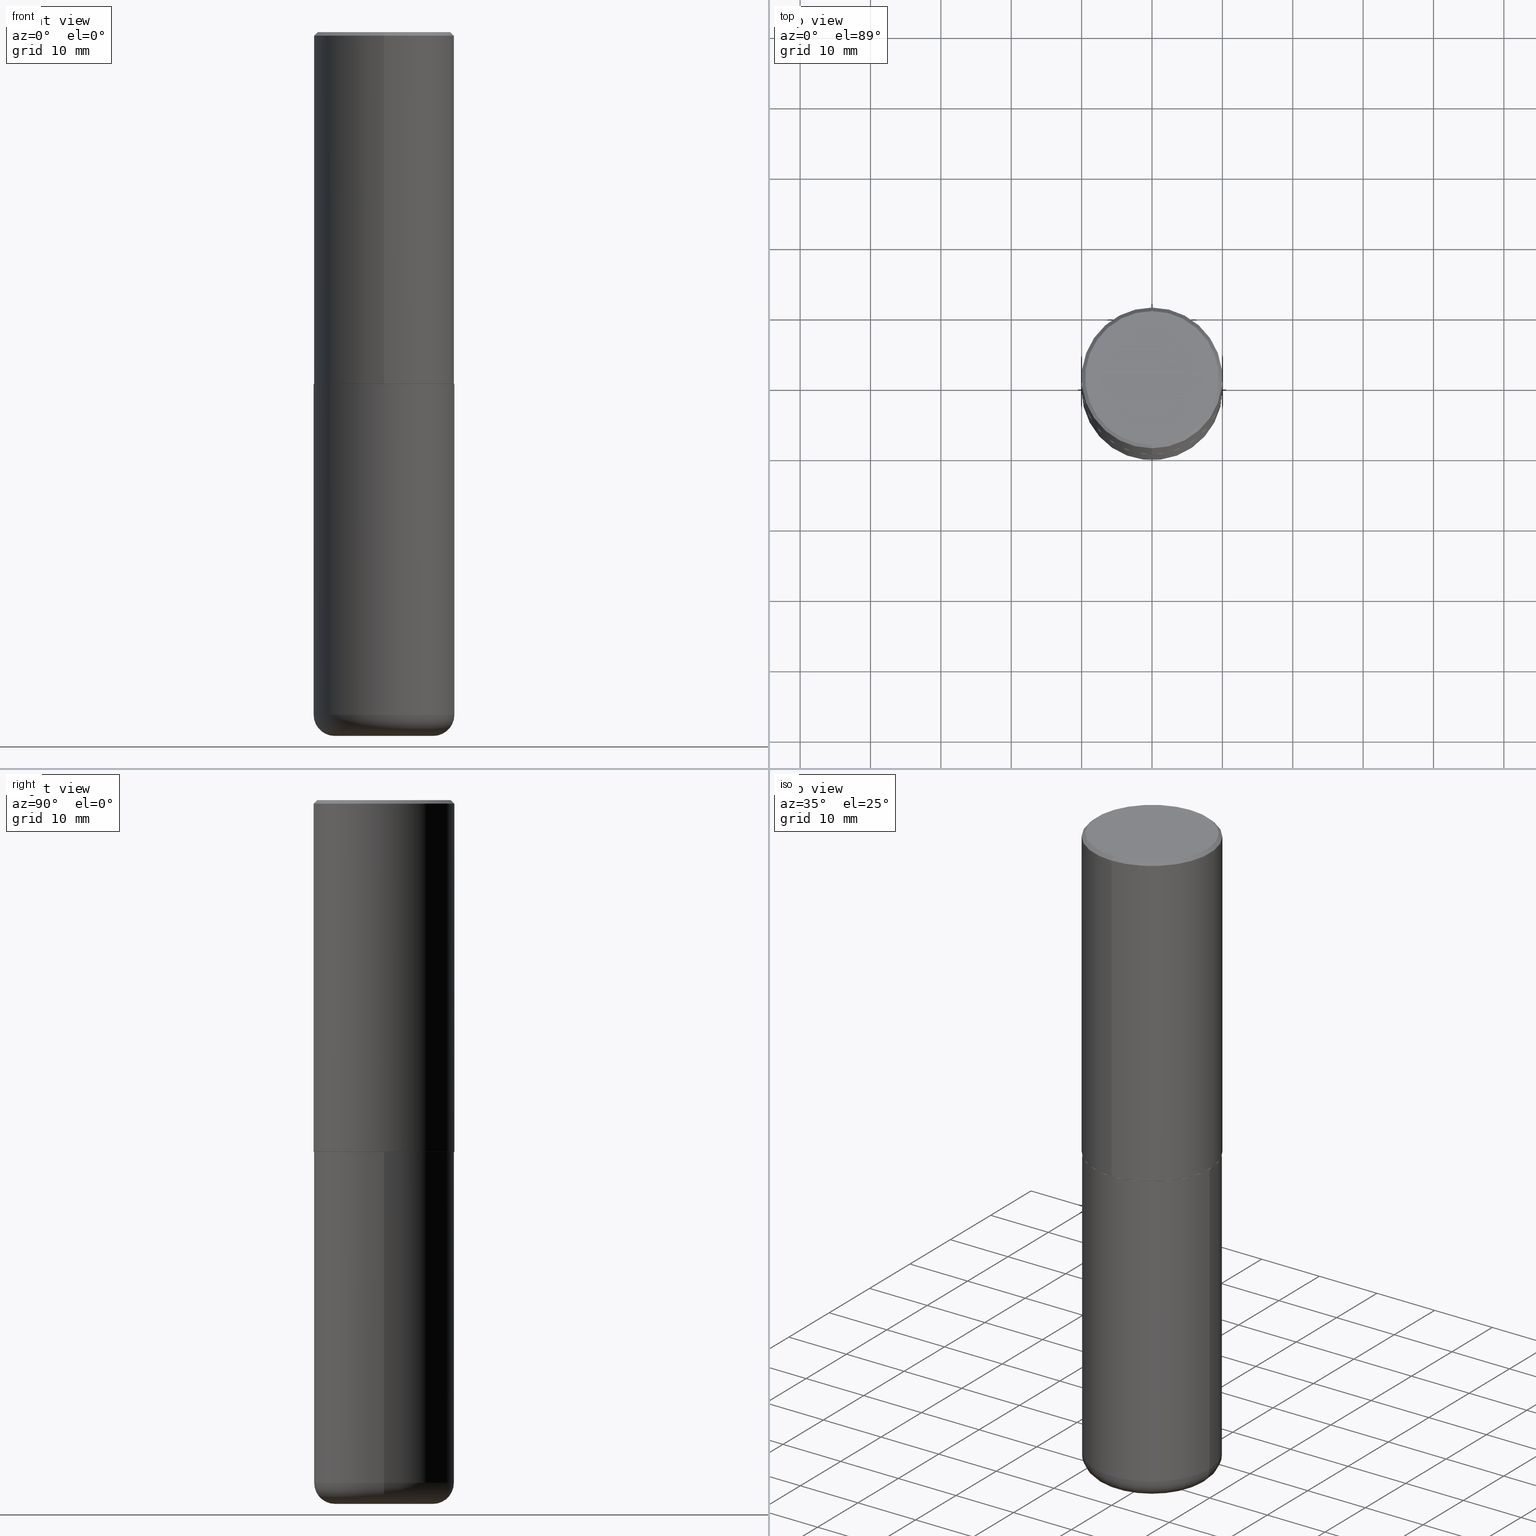
[diagram: canonical four-view strip — front | top / right | iso, engineering-drawing reading convention]
A machine part, canonical four-view strip (front | top / right | iso — engineering-drawing reading convention). The complete STEP part file that produces these views, byte-faithful:
ISO-10303-21;
HEADER;
FILE_DESCRIPTION (( 'STEP AP203' ),
    '1' );
FILE_NAME ('74809.STEP',
    '2024-05-02T19:20:12',
    ( '' ),
    ( '' ),
    'SwSTEP 2.0',
    'SolidWorks 2023',
    '' );
FILE_SCHEMA (( 'CONFIG_CONTROL_DESIGN' ));
ENDSEC;

DATA;
#1 = CARTESIAN_POINT ( 'NONE',  ( 4.816247846760815671E-29, -6.862632887772413316E-15, -1.967500000000000027 ) ) ;
#2 = FACE_OUTER_BOUND ( 'NONE', #405, .T. ) ;
#3 = CLOSED_SHELL ( 'NONE', ( #114, #81, #237, #254, #105, #359, #221, #224 ) ) ;
#4 = CC_DESIGN_DATE_AND_TIME_ASSIGNMENT ( #188, #25, ( #136 ) ) ;
#5 = CIRCLE ( 'NONE', #283, 0.3937000000000002720 ) ;
#6 = CARTESIAN_POINT ( 'NONE',  ( 4.813905344975441835E-29, -6.872981015512731707E-15, -1.968500000000000139 ) ) ;
#7 = EDGE_CURVE ( 'NONE', #51, #268, #10, .T. ) ;
#8 = FACE_OUTER_BOUND ( 'NONE', #14, .T. ) ;
#9 = ORIENTED_EDGE ( 'NONE', *, *, #296, .F. ) ;
#10 = CIRCLE ( 'NONE', #386, 0.1181000000000000660 ) ;
#11 = ADVANCED_FACE ( 'NONE', ( #387 ), #257, .T. ) ;
#12 = AXIS2_PLACEMENT_3D ( 'NONE', #354, #64, #161 ) ;
#13 = EDGE_CURVE ( 'NONE', #392, #106, #385, .T. ) ;
#14 = EDGE_LOOP ( 'NONE', ( #149, #176 ) ) ;
#15 = CALENDAR_DATE ( 2024, 2, 5 ) ;
#16 = ORIENTED_EDGE ( 'NONE', *, *, #92, .T. ) ;
#17 = PERSON_AND_ORGANIZATION ( #348, #409 ) ;
#18 = ORIENTED_EDGE ( 'NONE', *, *, #91, .F. ) ;
#19 = AXIS2_PLACEMENT_3D ( 'NONE', #28, #355, #98 ) ;
#20 = DIRECTION ( 'NONE',  ( 4.937700262164533054E-15, 0.7071067811865430208, -0.7071067811865520136 ) ) ;
#21 = APPROVAL_STATUS ( 'not_yet_approved' ) ;
#22 = EDGE_CURVE ( 'NONE', #268, #73, #163, .T. ) ;
#23 = MANIFOLD_SOLID_BREP ( 'Body-Move/Copy2[2]', #3 ) ;
#24 = DIRECTION ( 'NONE',  ( -2.445468806185136597E-29, 3.491481338843145583E-15, 1.000000000000000000 ) ) ;
#25 = DATE_TIME_ROLE ( 'classification_date' ) ;
#26 = ORIENTED_EDGE ( 'NONE', *, *, #357, .F. ) ;
#27 = PLANE ( 'NONE',  #319 ) ;
#28 = CARTESIAN_POINT ( 'NONE',  ( 4.895804672692082949E-31, -6.975992770289649092E-17, -0.02000000000000008715 ) ) ;
#29 = DIRECTION ( 'NONE',  ( -2.447902336346030930E-29, 3.487996385144809755E-15, 1.000000000000000000 ) ) ;
#30 = ORIENTED_EDGE ( 'NONE', *, *, #13, .F. ) ;
#31 = PRODUCT_DEFINITION_SHAPE ( 'NONE', 'NONE',  #417 ) ;
#32 = CARTESIAN_POINT ( 'NONE',  ( -5.506038201652776757E-45, 7.845509626213831500E-31, 2.249288347782537153E-16 ) ) ;
#33 = CARTESIAN_POINT ( 'NONE',  ( 0.000000000000000000, 0.000000000000000000, 0.000000000000000000 ) ) ;
#34 = ORIENTED_EDGE ( 'NONE', *, *, #231, .F. ) ;
#35 = DATE_AND_TIME ( #324, #252 ) ;
#36 = DIRECTION ( 'NONE',  ( -2.447902336346030930E-29, 3.487996385144809755E-15, 1.000000000000000000 ) ) ;
#37 = APPROVAL ( #334, 'UNSPECIFIED' ) ;
#38 = DIRECTION ( 'NONE',  ( -2.447902336346030930E-29, 3.487996385144809755E-15, 1.000000000000000000 ) ) ;
#39 = AXIS2_PLACEMENT_3D ( 'NONE', #314, #97, #360 ) ;
#40 = AXIS2_PLACEMENT_3D ( 'NONE', #210, #315, #229 ) ;
#41 = ORIENTED_EDGE ( 'NONE', *, *, #92, .F. ) ;
#42 = EDGE_CURVE ( 'NONE', #239, #243, #414, .T. ) ;
#43 = CC_DESIGN_SECURITY_CLASSIFICATION ( #136, ( #142 ) ) ;
#44 = CARTESIAN_POINT ( 'NONE',  ( 0.3937000000000001054, -1.608281049111317408E-14, -3.818900000000000183 ) ) ;
#45 = PERSON_AND_ORGANIZATION ( #348, #409 ) ;
#46 = ORIENTED_EDGE ( 'NONE', *, *, #202, .T. ) ;
#47 = CC_DESIGN_PERSON_AND_ORGANIZATION_ASSIGNMENT ( #345, #399, ( #142 ) ) ;
#48 = APPLICATION_PROTOCOL_DEFINITION ( 'international standard', 'config_control_design', 1994, #233 ) ;
#49 = CIRCLE ( 'NONE', #181, 0.2756000000000000116 ) ;
#50 = LOCAL_TIME ( 15, 20, 12.00000000000000000, #402 ) ;
#51 = VERTEX_POINT ( 'NONE', #375 ) ;
#52 = CARTESIAN_POINT ( 'NONE',  ( 9.339000823940418668E-29, -1.333361808490808928E-14, -3.818900000000000183 ) ) ;
#53 = CIRCLE ( 'NONE', #366, 0.3736999999999999211 ) ;
#54 = DIRECTION ( 'NONE',  ( -4.937700262165053702E-15, -0.7071067811866175168, 0.7071067811864775177 ) ) ;
#55 = ORIENTED_EDGE ( 'NONE', *, *, #72, .T. ) ;
#56 = EDGE_CURVE ( 'NONE', #106, #243, #217, .T. ) ;
#57 = CARTESIAN_POINT ( 'NONE',  ( 9.627810689950883669E-29, -1.374596203102546341E-14, -3.937000000000000277 ) ) ;
#58 = CARTESIAN_POINT ( 'NONE',  ( -2.749192406205084400E-15, -0.3937000000000002164, 1.373224176831512262E-15 ) ) ;
#59 = EDGE_CURVE ( 'NONE', #273, #83, #240, .T. ) ;
#60 = CARTESIAN_POINT ( 'NONE',  ( 4.895804672692082949E-31, -6.975992770289649092E-17, -0.02000000000000008715 ) ) ;
#61 = CALENDAR_DATE ( 2024, 2, 5 ) ;
#62 = CYLINDRICAL_SURFACE ( 'NONE', #102, 0.3937000000000002164 ) ;
#63 = AXIS2_PLACEMENT_3D ( 'NONE', #192, #353, #410 ) ;
#64 = DIRECTION ( 'NONE',  ( -2.445468806185136597E-29, 3.491481338843145583E-15, 1.000000000000000000 ) ) ;
#65 = DIRECTION ( 'NONE',  ( -2.447902336346030930E-29, 3.487996385144809755E-15, 1.000000000000000000 ) ) ;
#66 = ORIENTED_EDGE ( 'NONE', *, *, #384, .F. ) ;
#67 = CARTESIAN_POINT ( 'NONE',  ( 9.339000823940418668E-29, -1.333361808490808928E-14, -3.818900000000000183 ) ) ;
#68 = DIRECTION ( 'NONE',  ( 2.438088387897960049E-29, -3.491481338843145188E-15, -1.000000000000000000 ) ) ;
#69 = CC_DESIGN_APPROVAL ( #196, ( #136 ) ) ;
#70 = LENGTH_MEASURE_WITH_UNIT ( LENGTH_MEASURE( 0.02539999999999999897 ), #197 );
#71 = DIRECTION ( 'NONE',  ( 1.000000000000000000, -6.982962677686266711E-15, 0.000000000000000000 ) ) ;
#72 = EDGE_CURVE ( 'NONE', #83, #273, #140, .T. ) ;
#73 = VERTEX_POINT ( 'NONE', #290 ) ;
#74 = DIMENSIONAL_EXPONENTS ( 1.000000000000000000, 0.000000000000000000, 0.000000000000000000, 0.000000000000000000, 0.000000000000000000, 0.000000000000000000, 0.000000000000000000 ) ;
#75 = PERSON_AND_ORGANIZATION ( #348, #409 ) ;
#76 = AXIS2_PLACEMENT_3D ( 'NONE', #116, #352, #123 ) ;
#77 = VECTOR ( 'NONE', #184, 39.37007874015748143 ) ;
#78 = CC_DESIGN_APPROVAL ( #300, ( #417 ) ) ;
#79 = EDGE_CURVE ( 'NONE', #243, #106, #156, .T. ) ;
#80 = ORIENTED_EDGE ( 'NONE', *, *, #202, .F. ) ;
#81 = ADVANCED_FACE ( 'NONE', ( #323 ), #62, .T. ) ;
#82 = ORIENTED_EDGE ( 'NONE', *, *, #133, .T. ) ;
#83 = VERTEX_POINT ( 'NONE', #412 ) ;
#84 = DIRECTION ( 'NONE',  ( 6.982962677686265133E-15, 1.000000000000000000, -3.491137977679279029E-15 ) ) ;
#85 = DIRECTION ( 'NONE',  ( 6.982962677686265133E-15, 1.000000000000000000, -3.491137977679279029E-15 ) ) ;
#86 = PERSON_AND_ORGANIZATION_ROLE ( 'creator' ) ;
#87 = DIRECTION ( 'NONE',  ( -6.982962677686265133E-15, -1.000000000000000000, 3.478288761986584267E-15 ) ) ;
#88 = AXIS2_PLACEMENT_3D ( 'NONE', #127, #65, #129 ) ;
#89 = AXIS2_PLACEMENT_3D ( 'NONE', #173, #238, #205 ) ;
#90 = DIRECTION ( 'NONE',  ( -2.445468806185136597E-29, 3.491481338843145583E-15, 1.000000000000000000 ) ) ;
#91 = EDGE_CURVE ( 'NONE', #258, #106, #194, .T. ) ;
#92 = EDGE_CURVE ( 'NONE', #73, #134, #391, .T. ) ;
#93 = DIRECTION ( 'NONE',  ( -1.000000000000000000, 7.105427357601000281E-15, 0.000000000000000000 ) ) ;
#94 = FACE_OUTER_BOUND ( 'NONE', #177, .T. ) ;
#95 = DIRECTION ( 'NONE',  ( -4.851104656540950075E-15, -0.7071067811865479058, -0.7071067811865471286 ) ) ;
#96 = PRODUCT ( '74809', '74809', '', ( #174 ) ) ;
#97 = DIRECTION ( 'NONE',  ( -2.447902336346030930E-29, 3.487996385144809755E-15, 1.000000000000000000 ) ) ;
#98 = DIRECTION ( 'NONE',  ( -6.982962677686265133E-15, -1.000000000000000000, 3.491137977679279029E-15 ) ) ;
#99 = FACE_OUTER_BOUND ( 'NONE', #206, .T. ) ;
#100 = DIRECTION ( 'NONE',  ( -2.445468806185136877E-29, 3.491481338843145188E-15, 1.000000000000000000 ) ) ;
#101 = CARTESIAN_POINT ( 'NONE',  ( 4.818695749097161561E-29, -6.866120884157558352E-15, -1.968500000000000139 ) ) ;
#102 = AXIS2_PLACEMENT_3D ( 'NONE', #33, #223, #255 ) ;
#103 = CC_DESIGN_APPROVAL ( #37, ( #142 ) ) ;
#104 = DIRECTION ( 'NONE',  ( -6.982962677686265922E-15, -1.000000000000000000, 3.469453890861393601E-15 ) ) ;
#105 = ADVANCED_FACE ( 'NONE', ( #183 ), #159, .T. ) ;
#106 = VERTEX_POINT ( 'NONE', #132 ) ;
#107 = DIRECTION ( 'NONE',  ( -1.000000000000000000, 6.982962677686265922E-15, -4.876176775795935793E-29 ) ) ;
#108 = AXIS2_PLACEMENT_3D ( 'NONE', #60, #187, #84 ) ;
#109 = PERSON_AND_ORGANIZATION_ROLE ( 'classification_officer' ) ;
#110 = APPROVAL_DATE_TIME ( #374, #37 ) ;
#111 = ADVANCED_FACE ( 'NONE', ( #99 ), #362, .T. ) ;
#112 = ORIENTED_EDGE ( 'NONE', *, *, #79, .T. ) ;
#113 = ORIENTED_EDGE ( 'NONE', *, *, #341, .T. ) ;
#114 = ADVANCED_FACE ( 'NONE', ( #388 ), #299, .T. ) ;
#115 = SECURITY_CLASSIFICATION_LEVEL ( 'unclassified' ) ;
#116 = CARTESIAN_POINT ( 'NONE',  ( 4.818695749097161561E-29, -6.866120884157558352E-15, -1.968500000000000139 ) ) ;
#117 = DATE_AND_TIME ( #119, #50 ) ;
#118 = DIRECTION ( 'NONE',  ( 1.000000000000000000, -6.982962677686265922E-15, 0.000000000000000000 ) ) ;
#119 = CALENDAR_DATE ( 2024, 2, 5 ) ;
#120 = EDGE_LOOP ( 'NONE', ( #18, #34, #364, #112 ) ) ;
#121 = ORIENTED_EDGE ( 'NONE', *, *, #72, .F. ) ;
#122 = EDGE_CURVE ( 'NONE', #258, #331, #53, .T. ) ;
#123 = DIRECTION ( 'NONE',  ( -6.982962677686265922E-15, -1.000000000000000000, 3.487996385144809360E-15 ) ) ;
#124 = ORIENTED_EDGE ( 'NONE', *, *, #384, .T. ) ;
#125 = AXIS2_PLACEMENT_3D ( 'NONE', #292, #68, #107 ) ;
#126 = CARTESIAN_POINT ( 'NONE',  ( 2.749192406205084005E-15, 0.3937000000000000499, -0.02000000000000146105 ) ) ;
#127 = CARTESIAN_POINT ( 'NONE',  ( 4.895804672692082949E-31, -6.975992770289649092E-17, -0.02000000000000008715 ) ) ;
#128 = LINE ( 'NONE', #179, #199 ) ;
#129 = DIRECTION ( 'NONE',  ( -6.982962677686265133E-15, -1.000000000000000000, 3.491137977679279029E-15 ) ) ;
#130 = ORIENTED_EDGE ( 'NONE', *, *, #275, .T. ) ;
#131 = VECTOR ( 'NONE', #347, 39.37007874015748143 ) ;
#132 = CARTESIAN_POINT ( 'NONE',  ( -2.700978061722651647E-15, -0.3937000000000001609, -0.01999999999999870978 ) ) ;
#133 = EDGE_CURVE ( 'NONE', #306, #51, #49, .T. ) ;
#134 = VERTEX_POINT ( 'NONE', #191 ) ;
#135 = CIRCLE ( 'NONE', #227, 0.3736999999999999211 ) ;
#136 = SECURITY_CLASSIFICATION ( '', '', #115 ) ;
#137 = CARTESIAN_POINT ( 'NONE',  ( 0.3937000000000001054, -2.749192406205084005E-15, 1.919750796630860452E-29 ) ) ;
#138 = CARTESIAN_POINT ( 'NONE',  ( -2.749192406205036674E-15, -0.3937000000000070998, -1.967499999999998694 ) ) ;
#139 = PERSON_AND_ORGANIZATION ( #348, #409 ) ;
#140 = CIRCLE ( 'NONE', #302, 0.3926999999999999935 ) ;
#141 = ORIENTED_EDGE ( 'NONE', *, *, #122, .F. ) ;
#142 = PRODUCT_DEFINITION_FORMATION_WITH_SPECIFIED_SOURCE ( 'ANY', '', #96, .NOT_KNOWN. ) ;
#143 = ORIENTED_EDGE ( 'NONE', *, *, #59, .F. ) ;
#144 = ADVANCED_FACE ( 'NONE', ( #376 ), #284, .T. ) ;
#145 = CALENDAR_DATE ( 2024, 2, 5 ) ;
#146 = ORIENTED_EDGE ( 'NONE', *, *, #42, .F. ) ;
#147 = AXIS2_PLACEMENT_3D ( 'NONE', #52, #261, #71 ) ;
#148 = DIRECTION ( 'NONE',  ( 1.000000000000000000, -6.982962677686266711E-15, 4.883557194083112340E-29 ) ) ;
#149 = ORIENTED_EDGE ( 'NONE', *, *, #133, .F. ) ;
#150 = ORIENTED_EDGE ( 'NONE', *, *, #307, .F. ) ;
#151 = CARTESIAN_POINT ( 'NONE',  ( 2.749192406205084005E-15, 0.3937000000000000499, -0.02000000000000146105 ) ) ;
#152 = COORDINATED_UNIVERSAL_TIME_OFFSET ( 5, 0, .BEHIND. ) ;
#153 = ORIENTED_EDGE ( 'NONE', *, *, #288, .F. ) ;
#154 = CARTESIAN_POINT ( 'NONE',  ( -5.506038201652776757E-45, 7.845509626213831500E-31, 2.249288347782537153E-16 ) ) ;
#155 = DIRECTION ( 'NONE',  ( 7.105427357601001859E-15, 1.000000000000000000, -3.491481338843145583E-15 ) ) ;
#156 = CIRCLE ( 'NONE', #88, 0.3937000000000001054 ) ;
#157 = AXIS2_PLACEMENT_3D ( 'NONE', #6, #166, #361 ) ;
#158 = DIRECTION ( 'NONE',  ( -2.447902336346030930E-29, 3.487996385144809755E-15, 1.000000000000000000 ) ) ;
#159 = CYLINDRICAL_SURFACE ( 'NONE', #39, 0.3937000000000002164 ) ;
#160 = EDGE_CURVE ( 'NONE', #51, #306, #266, .T. ) ;
#161 = DIRECTION ( 'NONE',  ( 1.000000000000000000, -6.982962677686266711E-15, 4.883557194083112340E-29 ) ) ;
#162 = APPROVAL_STATUS ( 'not_yet_approved' ) ;
#163 = LINE ( 'NONE', #220, #203 ) ;
#164 = APPROVAL_DATE_TIME ( #35, #196 ) ;
#165 = DIRECTION ( 'NONE',  ( -6.982962677686265133E-15, -1.000000000000000000, 3.478288761986584267E-15 ) ) ;
#166 = DIRECTION ( 'NONE',  ( -2.445468806185136597E-29, 3.491481338843145583E-15, 1.000000000000000000 ) ) ;
#167 = VECTOR ( 'NONE', #317, 39.37007874015748143 ) ;
#168 = AXIS2_PLACEMENT_3D ( 'NONE', #245, #408, #85 ) ;
#169 = CC_DESIGN_DATE_AND_TIME_ASSIGNMENT ( #180, #272, ( #417 ) ) ;
#170 = AXIS2_PLACEMENT_3D ( 'NONE', #230, #320, #358 ) ;
#171 = MANIFOLD_SOLID_BREP ( 'Body-Move/Copy2[1]', #327 ) ;
#172 = FACE_OUTER_BOUND ( 'NONE', #372, .T. ) ;
#173 = CARTESIAN_POINT ( 'NONE',  ( 0.000000000000000000, 0.000000000000000000, 0.000000000000000000 ) ) ;
#174 = MECHANICAL_CONTEXT ( 'NONE', #233, 'mechanical' ) ;
#175 = COORDINATED_UNIVERSAL_TIME_OFFSET ( 5, 0, .BEHIND. ) ;
#176 = ORIENTED_EDGE ( 'NONE', *, *, #160, .F. ) ;
#177 = EDGE_LOOP ( 'NONE', ( #141, #418, #379, #274 ) ) ;
#178 = ORIENTED_EDGE ( 'NONE', *, *, #307, .T. ) ;
#179 = CARTESIAN_POINT ( 'NONE',  ( -2.742209443527348687E-15, -0.3927000000000069324, -1.968499999999998584 ) ) ;
#180 = DATE_AND_TIME ( #15, #356 ) ;
#181 = AXIS2_PLACEMENT_3D ( 'NONE', #57, #24, #118 ) ;
#182 = DIRECTION ( 'NONE',  ( -2.445468806185136597E-29, 3.491481338843145583E-15, 1.000000000000000000 ) ) ;
#183 = FACE_OUTER_BOUND ( 'NONE', #211, .T. ) ;
#184 = DIRECTION ( 'NONE',  ( 5.024295867788576727E-15, 0.7071067811866224018, 0.7071067811864726327 ) ) ;
#185 = DIRECTION ( 'NONE',  ( -2.445468806185136877E-29, 3.491481338843145188E-15, 1.000000000000000000 ) ) ;
#186 = PRODUCT_RELATED_PRODUCT_CATEGORY ( 'detail', '', ( #96 ) ) ;
#187 = DIRECTION ( 'NONE',  ( 2.447902336346030930E-29, -3.487996385144809755E-15, -1.000000000000000000 ) ) ;
#188 = DATE_AND_TIME ( #61, #333 ) ;
#189 = CARTESIAN_POINT ( 'NONE',  ( -0.2756000000000000116, -1.137536230515325427E-14, -3.818900000000000183 ) ) ;
#190 = CIRCLE ( 'NONE', #147, 0.3937000000000001054 ) ;
#191 = CARTESIAN_POINT ( 'NONE',  ( 0.3937000000000000499, -9.622173421717814924E-15, -1.968500000000000139 ) ) ;
#192 = CARTESIAN_POINT ( 'NONE',  ( 0.000000000000000000, 0.000000000000000000, 0.000000000000000000 ) ) ;
#193 = COORDINATED_UNIVERSAL_TIME_OFFSET ( 5, 0, .BEHIND. ) ;
#194 = LINE ( 'NONE', #382, #377 ) ;
#195 = CARTESIAN_POINT ( 'NONE',  ( 2.679362779428220707E-15, 0.3736999999999999211, -1.078535414350361218E-15 ) ) ;
#196 = APPROVAL ( #162, 'UNSPECIFIED' ) ;
#197 =( LENGTH_UNIT ( ) NAMED_UNIT ( * ) SI_UNIT ( $, .METRE. ) );
#198 = AXIS2_PLACEMENT_3D ( 'NONE', #311, #90, #219 ) ;
#199 = VECTOR ( 'NONE', #54, 39.37007874015748143 ) ;
#200 = ORIENTED_EDGE ( 'NONE', *, *, #59, .T. ) ;
#201 = DIRECTION ( 'NONE',  ( 1.000000000000000000, -6.982962677686266711E-15, 0.000000000000000000 ) ) ;
#202 = EDGE_CURVE ( 'NONE', #273, #239, #253, .T. ) ;
#203 = VECTOR ( 'NONE', #185, 39.37007874015748143 ) ;
#204 = UNCERTAINTY_MEASURE_WITH_UNIT (LENGTH_MEASURE( 1.000000000000000082E-05 ), #265, 'distance_accuracy_value', 'NONE');
#205 = DIRECTION ( 'NONE',  ( 1.000000000000000000, 0.000000000000000000, 0.000000000000000000 ) ) ;
#206 = EDGE_LOOP ( 'NONE', ( #248, #305, #282, #9 ) ) ;
#207 = EDGE_CURVE ( 'NONE', #331, #243, #313, .T. ) ;
#208 = ORIENTED_EDGE ( 'NONE', *, *, #79, .F. ) ;
#209 = CIRCLE ( 'NONE', #228, 0.1181000000000000660 ) ;
#210 = CARTESIAN_POINT ( 'NONE',  ( 4.813905344975441835E-29, -6.872981015512731707E-15, -1.968500000000000139 ) ) ;
#211 = EDGE_LOOP ( 'NONE', ( #146, #113, #397, #208 ) ) ;
#212 = FACE_OUTER_BOUND ( 'NONE', #120, .T. ) ;
#213 = APPLICATION_CONTEXT ( 'configuration controlled 3d designs of mechanical parts and assemblies' ) ;
#214 = CARTESIAN_POINT ( 'NONE',  ( 2.609533152651356620E-15, 0.3736999999999999211, -1.190999831739488445E-15 ) ) ;
#215 = APPLICATION_PROTOCOL_DEFINITION ( 'international standard', 'config_control_design', 1994, #213 ) ;
#216 = DIRECTION ( 'NONE',  ( -2.447902336346030930E-29, 3.487996385144809755E-15, 1.000000000000000000 ) ) ;
#217 = CIRCLE ( 'NONE', #19, 0.3937000000000001054 ) ;
#218 = APPROVAL_PERSON_ORGANIZATION ( #289, #196, #413 ) ;
#219 = DIRECTION ( 'NONE',  ( 1.000000000000000000, -6.982962677686265922E-15, 0.000000000000000000 ) ) ;
#220 = CARTESIAN_POINT ( 'NONE',  ( -0.3937000000000001054, 2.797406750687515181E-15, -1.936584745033357016E-29 ) ) ;
#221 = ADVANCED_FACE ( 'NONE', ( #322 ), #406, .F. ) ;
#222 = CARTESIAN_POINT ( 'NONE',  ( 0.000000000000000000, 0.000000000000000000, 0.000000000000000000 ) ) ;
#223 = DIRECTION ( 'NONE',  ( -2.447902336346030930E-29, 3.487996385144809755E-15, 1.000000000000000000 ) ) ;
#224 = ADVANCED_FACE ( 'NONE', ( #249 ), #27, .F. ) ;
#225 = CARTESIAN_POINT ( 'NONE',  ( 2.797406750687540424E-15, 0.3936999999999934441, -1.967500000000001359 ) ) ;
#226 = CARTESIAN_POINT ( 'NONE',  ( 4.818695749097161561E-29, -6.866120884157558352E-15, -1.968500000000000139 ) ) ;
#227 = AXIS2_PLACEMENT_3D ( 'NONE', #154, #349, #316 ) ;
#228 = AXIS2_PLACEMENT_3D ( 'NONE', #244, #371, #342 ) ;
#229 = DIRECTION ( 'NONE',  ( -1.000000000000000000, 6.982962677686265922E-15, -4.876176775795935793E-29 ) ) ;
#230 = CARTESIAN_POINT ( 'NONE',  ( 4.813905344975441835E-29, -6.872981015512731707E-15, -1.968500000000000139 ) ) ;
#231 = EDGE_CURVE ( 'NONE', #331, #258, #135, .T. ) ;
#232 = CARTESIAN_POINT ( 'NONE',  ( 9.339000823940418668E-29, -1.333361808490808928E-14, -3.818900000000000183 ) ) ;
#233 = APPLICATION_CONTEXT ( 'configuration controlled 3d designs of mechanical parts and assemblies' ) ;
#234 = CARTESIAN_POINT ( 'NONE',  ( 4.816247846760815671E-29, -6.862632887772413316E-15, -1.967500000000000027 ) ) ;
#235 = AXIS2_PLACEMENT_3D ( 'NONE', #277, #158, #278 ) ;
#236 = ORIENTED_EDGE ( 'NONE', *, *, #122, .T. ) ;
#237 = ADVANCED_FACE ( 'NONE', ( #94 ), #332, .T. ) ;
#238 = DIRECTION ( 'NONE',  ( 0.000000000000000000, 0.000000000000000000, 1.000000000000000000 ) ) ;
#239 = VERTEX_POINT ( 'NONE', #225 ) ;
#240 = CIRCLE ( 'NONE', #259, 0.3926999999999999935 ) ;
#241 = AXIS2_PLACEMENT_3D ( 'NONE', #101, #330, #389 ) ;
#242 = CC_DESIGN_PERSON_AND_ORGANIZATION_ASSIGNMENT ( #304, #86, ( #142 ) ) ;
#243 = VERTEX_POINT ( 'NONE', #126 ) ;
#244 = CARTESIAN_POINT ( 'NONE',  ( 0.2756000000000000116, -1.525812259887842581E-14, -3.818900000000000183 ) ) ;
#245 = CARTESIAN_POINT ( 'NONE',  ( 4.895804672692082949E-31, -6.975992770289649092E-17, -0.02000000000000008715 ) ) ;
#246 = APPROVAL_DATE_TIME ( #117, #300 ) ;
#247 = EDGE_LOOP ( 'NONE', ( #121, #143 ) ) ;
#248 = ORIENTED_EDGE ( 'NONE', *, *, #7, .F. ) ;
#249 = FACE_OUTER_BOUND ( 'NONE', #416, .T. ) ;
#250 = ORIENTED_EDGE ( 'NONE', *, *, #390, .F. ) ;
#251 = ADVANCED_BREP_SHAPE_REPRESENTATION ( '74809', ( #171, #23, #89 ), #260 ) ;
#252 = LOCAL_TIME ( 15, 20, 12.00000000000000000, #193 ) ;
#253 = LINE ( 'NONE', #373, #77 ) ;
#254 = ADVANCED_FACE ( 'NONE', ( #212 ), #338, .T. ) ;
#255 = DIRECTION ( 'NONE',  ( -6.982962677686265922E-15, -1.000000000000000000, 3.487996385144809360E-15 ) ) ;
#256 = DIRECTION ( 'NONE',  ( -6.982962677686265133E-15, -1.000000000000000000, 3.487996385144809755E-15 ) ) ;
#257 = CYLINDRICAL_SURFACE ( 'NONE', #63, 0.3937000000000001054 ) ;
#258 = VERTEX_POINT ( 'NONE', #318 ) ;
#259 = AXIS2_PLACEMENT_3D ( 'NONE', #226, #36, #87 ) ;
#260 =( GEOMETRIC_REPRESENTATION_CONTEXT ( 3 ) GLOBAL_UNCERTAINTY_ASSIGNED_CONTEXT ( ( #204 ) ) GLOBAL_UNIT_ASSIGNED_CONTEXT ( ( #265, #365, #294 ) ) REPRESENTATION_CONTEXT ( 'NONE', 'WORKASPACE' ) );
#261 = DIRECTION ( 'NONE',  ( -2.445468806185136597E-29, 3.491481338843145583E-15, 1.000000000000000000 ) ) ;
#262 = LINE ( 'NONE', #137, #395 ) ;
#263 = DIRECTION ( 'NONE',  ( -6.982962677686265922E-15, -1.000000000000000000, 3.469453890861393601E-15 ) ) ;
#264 = AXIS2_PLACEMENT_3D ( 'NONE', #222, #286, #281 ) ;
#265 =( CONVERSION_BASED_UNIT ( 'INCH', #70 ) LENGTH_UNIT ( ) NAMED_UNIT ( #74 ) );
#266 = CIRCLE ( 'NONE', #198, 0.2756000000000000116 ) ;
#267 = TOROIDAL_SURFACE ( 'NONE', #12, 0.2756000000000000116, 0.1181000000000000522 ) ;
#268 = VERTEX_POINT ( 'NONE', #411 ) ;
#269 = AXIS2_PLACEMENT_3D ( 'NONE', #232, #182, #148 ) ;
#270 = AXIS2_PLACEMENT_3D ( 'NONE', #67, #380, #201 ) ;
#271 = EDGE_LOOP ( 'NONE', ( #124, #350, #279, #30 ) ) ;
#272 = DATE_TIME_ROLE ( 'creation_date' ) ;
#273 = VERTEX_POINT ( 'NONE', #344 ) ;
#274 = ORIENTED_EDGE ( 'NONE', *, *, #207, .F. ) ;
#275 = EDGE_CURVE ( 'NONE', #83, #392, #128, .T. ) ;
#276 = PERSON_AND_ORGANIZATION_ROLE ( 'design_owner' ) ;
#277 = CARTESIAN_POINT ( 'NONE',  ( 4.818695749097161561E-29, -6.866120884157558352E-15, -1.968500000000000139 ) ) ;
#278 = DIRECTION ( 'NONE',  ( -6.982962677686265133E-15, -1.000000000000000000, 3.478288761986584267E-15 ) ) ;
#279 = ORIENTED_EDGE ( 'NONE', *, *, #56, .F. ) ;
#280 = ADVANCED_FACE ( 'NONE', ( #383 ), #267, .T. ) ;
#281 = DIRECTION ( 'NONE',  ( 1.000000000000000000, -6.982962677686266711E-15, 4.876176775795935793E-29 ) ) ;
#282 = ORIENTED_EDGE ( 'NONE', *, *, #288, .T. ) ;
#283 = AXIS2_PLACEMENT_3D ( 'NONE', #1, #326, #263 ) ;
#284 = CYLINDRICAL_SURFACE ( 'NONE', #264, 0.3937000000000001054 ) ;
#285 = EDGE_LOOP ( 'NONE', ( #329, #367, #312, #41 ) ) ;
#286 = DIRECTION ( 'NONE',  ( -2.445468806185136597E-29, 3.491481338843145583E-15, 1.000000000000000000 ) ) ;
#287 = CARTESIAN_POINT ( 'NONE',  ( 4.818695749097161561E-29, -6.866120884157558352E-15, -1.968500000000000139 ) ) ;
#288 = EDGE_CURVE ( 'NONE', #306, #325, #209, .T. ) ;
#289 = PERSON_AND_ORGANIZATION ( #348, #409 ) ;
#290 = CARTESIAN_POINT ( 'NONE',  ( -0.3937000000000000499, -7.305892799522895709E-15, -1.968500000000000139 ) ) ;
#291 = CIRCLE ( 'NONE', #346, 0.3937000000000002720 ) ;
#292 = CARTESIAN_POINT ( 'NONE',  ( 9.627810689950883669E-29, -1.374596203102546341E-14, -3.937000000000000277 ) ) ;
#293 = EDGE_LOOP ( 'NONE', ( #178, #301, #250, #26 ) ) ;
#294 =( NAMED_UNIT ( * ) SI_UNIT ( $, .STERADIAN. ) SOLID_ANGLE_UNIT ( ) );
#295 = CC_DESIGN_PERSON_AND_ORGANIZATION_ASSIGNMENT ( #139, #109, ( #136 ) ) ;
#296 = EDGE_CURVE ( 'NONE', #268, #325, #190, .T. ) ;
#297 = PLANE ( 'NONE',  #125 ) ;
#298 = ADVANCED_FACE ( 'NONE', ( #2 ), #398, .F. ) ;
#299 = CONICAL_SURFACE ( 'NONE', #235, 0.3926999999999999935, 0.7853981633975507526 ) ;
#300 = APPROVAL ( #21, 'UNSPECIFIED' ) ;
#301 = ORIENTED_EDGE ( 'NONE', *, *, #22, .T. ) ;
#302 = AXIS2_PLACEMENT_3D ( 'NONE', #287, #216, #165 ) ;
#303 = CIRCLE ( 'NONE', #157, 0.3937000000000000499 ) ;
#304 = PERSON_AND_ORGANIZATION ( #348, #409 ) ;
#305 = ORIENTED_EDGE ( 'NONE', *, *, #160, .T. ) ;
#306 = VERTEX_POINT ( 'NONE', #351 ) ;
#307 = EDGE_CURVE ( 'NONE', #325, #268, #363, .T. ) ;
#308 = COORDINATED_UNIVERSAL_TIME_OFFSET ( 5, 0, .BEHIND. ) ;
#309 = ORIENTED_EDGE ( 'NONE', *, *, #390, .T. ) ;
#310 = DESIGN_CONTEXT ( 'detailed design', #213, 'design' ) ;
#311 = CARTESIAN_POINT ( 'NONE',  ( 9.627810689950883669E-29, -1.374596203102546341E-14, -3.937000000000000277 ) ) ;
#312 = ORIENTED_EDGE ( 'NONE', *, *, #357, .T. ) ;
#313 = LINE ( 'NONE', #151, #400 ) ;
#314 = CARTESIAN_POINT ( 'NONE',  ( 0.000000000000000000, 0.000000000000000000, 0.000000000000000000 ) ) ;
#315 = DIRECTION ( 'NONE',  ( 2.438088387897960049E-29, -3.491481338843145188E-15, -1.000000000000000000 ) ) ;
#316 = DIRECTION ( 'NONE',  ( -6.982962677686265133E-15, -1.000000000000000000, 3.487996385144809755E-15 ) ) ;
#317 = DIRECTION ( 'NONE',  ( -2.447902336346030930E-29, 3.487996385144809360E-15, 1.000000000000000000 ) ) ;
#318 = CARTESIAN_POINT ( 'NONE',  ( -2.632373081744936315E-15, -0.3736999999999999211, 1.528393083906868747E-15 ) ) ;
#319 = AXIS2_PLACEMENT_3D ( 'NONE', #214, #381, #403 ) ;
#320 = DIRECTION ( 'NONE',  ( -2.445468806185136597E-29, 3.491481338843145583E-15, 1.000000000000000000 ) ) ;
#321 = CONICAL_SURFACE ( 'NONE', #241, 0.3926999999999999935, 0.7853981633975507526 ) ;
#322 = FACE_OUTER_BOUND ( 'NONE', #247, .T. ) ;
#323 = FACE_OUTER_BOUND ( 'NONE', #271, .T. ) ;
#324 = CALENDAR_DATE ( 2024, 2, 5 ) ;
#325 = VERTEX_POINT ( 'NONE', #44 ) ;
#326 = DIRECTION ( 'NONE',  ( -2.447902336346030930E-29, 3.487996385144809755E-15, 1.000000000000000000 ) ) ;
#327 = CLOSED_SHELL ( 'NONE', ( #11, #280, #298, #144, #111, #394 ) ) ;
#328 = APPROVAL_PERSON_ORGANIZATION ( #396, #37, #369 ) ;
#329 = ORIENTED_EDGE ( 'NONE', *, *, #22, .F. ) ;
#330 = DIRECTION ( 'NONE',  ( -2.447902336346030930E-29, 3.487996385144809755E-15, 1.000000000000000000 ) ) ;
#331 = VERTEX_POINT ( 'NONE', #195 ) ;
#332 = CONICAL_SURFACE ( 'NONE', #168, 0.3937000000000001054, 0.7853981633974453924 ) ;
#333 = LOCAL_TIME ( 15, 20, 12.00000000000000000, #152 ) ;
#334 = APPROVAL_STATUS ( 'not_yet_approved' ) ;
#335 = ORIENTED_EDGE ( 'NONE', *, *, #231, .T. ) ;
#336 = EDGE_LOOP ( 'NONE', ( #82, #370, #150, #153 ) ) ;
#337 = CC_DESIGN_PERSON_AND_ORGANIZATION_ASSIGNMENT ( #75, #343, ( #417 ) ) ;
#338 = CONICAL_SURFACE ( 'NONE', #108, 0.3937000000000001054, 0.7853981633974453924 ) ;
#339 = ORIENTED_EDGE ( 'NONE', *, *, #341, .F. ) ;
#340 = EDGE_LOOP ( 'NONE', ( #55, #46, #66, #404 ) ) ;
#341 = EDGE_CURVE ( 'NONE', #239, #392, #5, .T. ) ;
#342 = DIRECTION ( 'NONE',  ( 1.000000000000000000, -6.982962677686269077E-15, 0.000000000000000000 ) ) ;
#343 = PERSON_AND_ORGANIZATION_ROLE ( 'creator' ) ;
#344 = CARTESIAN_POINT ( 'NONE',  ( 2.793854037008762403E-15, 0.3926999999999931101, -1.968500000000001471 ) ) ;
#345 = PERSON_AND_ORGANIZATION ( #348, #409 ) ;
#346 = AXIS2_PLACEMENT_3D ( 'NONE', #234, #38, #104 ) ;
#347 = DIRECTION ( 'NONE',  ( -2.447902336346030930E-29, 3.487996385144809360E-15, 1.000000000000000000 ) ) ;
#348 = PERSON ( 'UNSPECIFIED', 'UNSPECIFIED', 'UNSPECIFIED', ('UNSPECIFIED'), ('UNSPECIFIED'), ('UNSPECIFIED') ) ;
#349 = DIRECTION ( 'NONE',  ( -2.447902336346030930E-29, 3.487996385144809755E-15, 1.000000000000000000 ) ) ;
#350 = ORIENTED_EDGE ( 'NONE', *, *, #42, .T. ) ;
#351 = CARTESIAN_POINT ( 'NONE',  ( 0.2756000000000000116, -1.567046654499579837E-14, -3.937000000000000277 ) ) ;
#352 = DIRECTION ( 'NONE',  ( -2.447902336346030930E-29, 3.487996385144809360E-15, 1.000000000000000000 ) ) ;
#353 = DIRECTION ( 'NONE',  ( -2.445468806185136597E-29, 3.491481338843145583E-15, 1.000000000000000000 ) ) ;
#354 = CARTESIAN_POINT ( 'NONE',  ( 9.339000823940418668E-29, -1.333361808490808928E-14, -3.818900000000000183 ) ) ;
#355 = DIRECTION ( 'NONE',  ( -2.447902336346030930E-29, 3.487996385144809755E-15, 1.000000000000000000 ) ) ;
#356 = LOCAL_TIME ( 15, 20, 12.00000000000000000, #308 ) ;
#357 = EDGE_CURVE ( 'NONE', #325, #134, #262, .T. ) ;
#358 = DIRECTION ( 'NONE',  ( 1.000000000000000000, -6.982962677686265133E-15, 0.000000000000000000 ) ) ;
#359 = ADVANCED_FACE ( 'NONE', ( #172 ), #321, .T. ) ;
#360 = DIRECTION ( 'NONE',  ( -6.982962677686265922E-15, -1.000000000000000000, 3.487996385144809360E-15 ) ) ;
#361 = DIRECTION ( 'NONE',  ( 1.000000000000000000, -6.982962677686265133E-15, 0.000000000000000000 ) ) ;
#362 = TOROIDAL_SURFACE ( 'NONE', #269, 0.2756000000000000116, 0.1181000000000000522 ) ;
#363 = CIRCLE ( 'NONE', #270, 0.3937000000000001054 ) ;
#364 = ORIENTED_EDGE ( 'NONE', *, *, #207, .T. ) ;
#365 =( NAMED_UNIT ( * ) PLANE_ANGLE_UNIT ( ) SI_UNIT ( $, .RADIAN. ) );
#366 = AXIS2_PLACEMENT_3D ( 'NONE', #32, #29, #256 ) ;
#367 = ORIENTED_EDGE ( 'NONE', *, *, #296, .T. ) ;
#368 = APPROVAL_ROLE ( '' ) ;
#369 = APPROVAL_ROLE ( '' ) ;
#370 = ORIENTED_EDGE ( 'NONE', *, *, #7, .T. ) ;
#371 = DIRECTION ( 'NONE',  ( -6.982962677686266711E-15, -1.000000000000000000, 3.491481338843145583E-15 ) ) ;
#372 = EDGE_LOOP ( 'NONE', ( #80, #200, #130, #339 ) ) ;
#373 = CARTESIAN_POINT ( 'NONE',  ( 2.790301323329961110E-15, 0.3926999999999931101, -1.968500000000001471 ) ) ;
#374 = DATE_AND_TIME ( #145, #401 ) ;
#375 = CARTESIAN_POINT ( 'NONE',  ( -0.2756000000000000116, -1.116195879274560421E-14, -3.937000000000000277 ) ) ;
#376 = FACE_OUTER_BOUND ( 'NONE', #285, .T. ) ;
#377 = VECTOR ( 'NONE', #95, 39.37007874015748143 ) ;
#378 = APPROVAL_PERSON_ORGANIZATION ( #17, #300, #368 ) ;
#379 = ORIENTED_EDGE ( 'NONE', *, *, #56, .T. ) ;
#380 = DIRECTION ( 'NONE',  ( -2.445468806185136597E-29, 3.491481338843145583E-15, 1.000000000000000000 ) ) ;
#381 = DIRECTION ( 'NONE',  ( 2.447902336346030930E-29, -3.487996385144809360E-15, -1.000000000000000000 ) ) ;
#382 = CARTESIAN_POINT ( 'NONE',  ( -2.700978061722651647E-15, -0.3937000000000001609, -0.01999999999999870978 ) ) ;
#383 = FACE_OUTER_BOUND ( 'NONE', #336, .T. ) ;
#384 = EDGE_CURVE ( 'NONE', #392, #239, #291, .T. ) ;
#385 = LINE ( 'NONE', #58, #167 ) ;
#386 = AXIS2_PLACEMENT_3D ( 'NONE', #189, #155, #93 ) ;
#387 = FACE_OUTER_BOUND ( 'NONE', #293, .T. ) ;
#388 = FACE_OUTER_BOUND ( 'NONE', #340, .T. ) ;
#389 = DIRECTION ( 'NONE',  ( -6.982962677686265133E-15, -1.000000000000000000, 3.478288761986584267E-15 ) ) ;
#390 = EDGE_CURVE ( 'NONE', #134, #73, #303, .T. ) ;
#391 = CIRCLE ( 'NONE', #170, 0.3937000000000000499 ) ;
#392 = VERTEX_POINT ( 'NONE', #138 ) ;
#393 = CC_DESIGN_PERSON_AND_ORGANIZATION_ASSIGNMENT ( #45, #276, ( #96 ) ) ;
#394 = ADVANCED_FACE ( 'NONE', ( #8 ), #297, .T. ) ;
#395 = VECTOR ( 'NONE', #100, 39.37007874015748143 ) ;
#396 = PERSON_AND_ORGANIZATION ( #348, #409 ) ;
#397 = ORIENTED_EDGE ( 'NONE', *, *, #13, .T. ) ;
#398 = PLANE ( 'NONE',  #40 ) ;
#399 = PERSON_AND_ORGANIZATION_ROLE ( 'design_supplier' ) ;
#400 = VECTOR ( 'NONE', #20, 39.37007874015748143 ) ;
#401 = LOCAL_TIME ( 15, 20, 12.00000000000000000, #175 ) ;
#402 = COORDINATED_UNIVERSAL_TIME_OFFSET ( 5, 0, .BEHIND. ) ;
#403 = DIRECTION ( 'NONE',  ( 6.982962677686265922E-15, 1.000000000000000000, -3.487996385144809360E-15 ) ) ;
#404 = ORIENTED_EDGE ( 'NONE', *, *, #275, .F. ) ;
#405 = EDGE_LOOP ( 'NONE', ( #309, #16 ) ) ;
#406 = PLANE ( 'NONE',  #76 ) ;
#407 = CARTESIAN_POINT ( 'NONE',  ( 2.797406750687515575E-15, 0.3937000000000002164, -1.373224176831512262E-15 ) ) ;
#408 = DIRECTION ( 'NONE',  ( 2.447902336346030930E-29, -3.487996385144809755E-15, -1.000000000000000000 ) ) ;
#409 = ORGANIZATION ( 'UNSPECIFIED', 'UNSPECIFIED', '' ) ;
#410 = DIRECTION ( 'NONE',  ( 1.000000000000000000, -6.982962677686266711E-15, 4.876176775795935793E-29 ) ) ;
#411 = CARTESIAN_POINT ( 'NONE',  ( -0.3937000000000001054, -1.053621133422057529E-14, -3.818900000000000183 ) ) ;
#412 = CARTESIAN_POINT ( 'NONE',  ( -2.742209443527348687E-15, -0.3927000000000069324, -1.968499999999998584 ) ) ;
#413 = APPROVAL_ROLE ( '' ) ;
#414 = LINE ( 'NONE', #407, #131 ) ;
#415 = SHAPE_DEFINITION_REPRESENTATION ( #31, #251 ) ;
#416 = EDGE_LOOP ( 'NONE', ( #335, #236 ) ) ;
#417 = PRODUCT_DEFINITION ( 'UNKNOWN', '', #142, #310 ) ;
#418 = ORIENTED_EDGE ( 'NONE', *, *, #91, .T. ) ;
ENDSEC;
END-ISO-10303-21;
